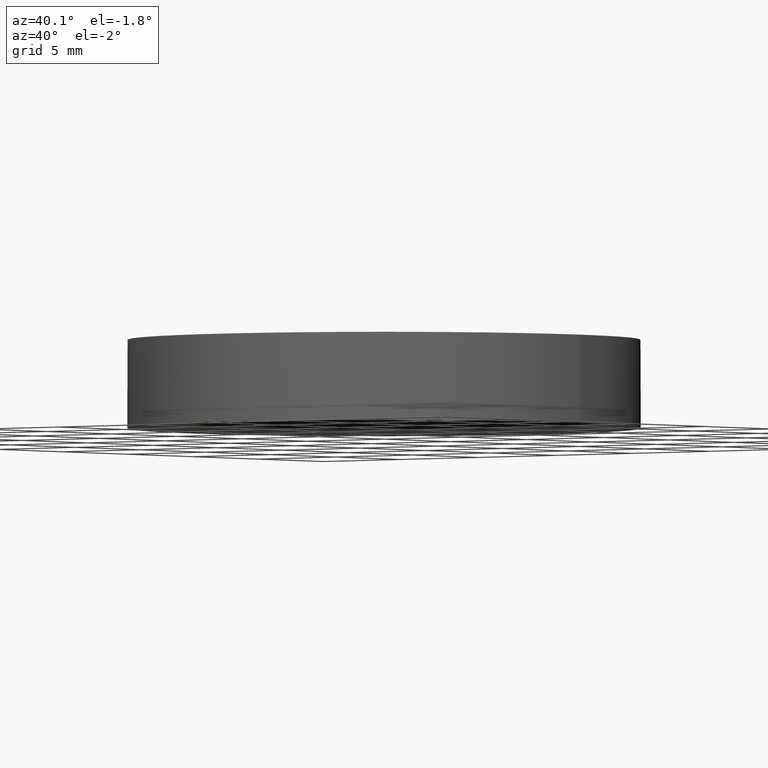
[diagram: clean part render]
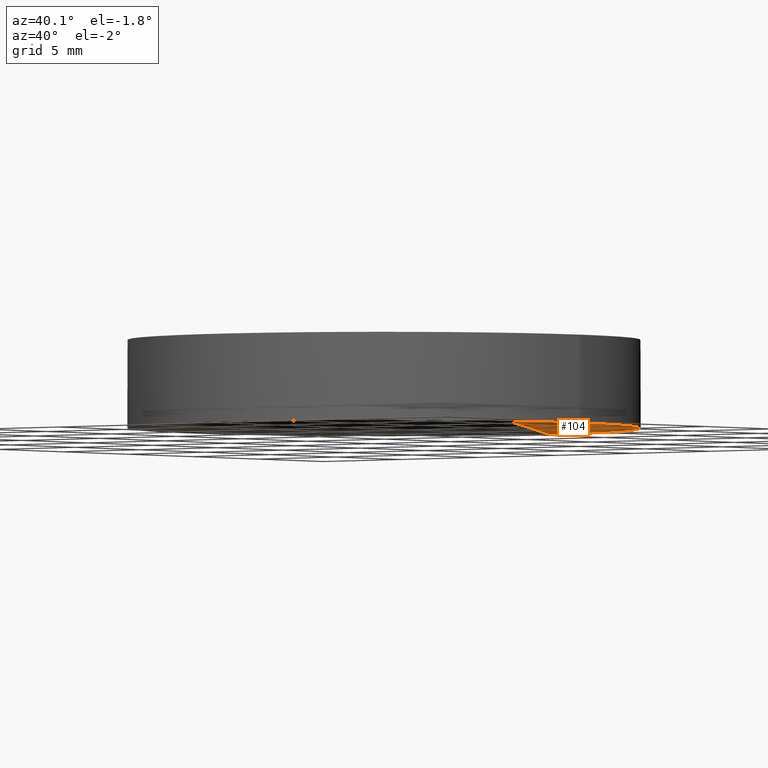
[diagram: same view with one face highlighted and labeled with its STEP entity id]
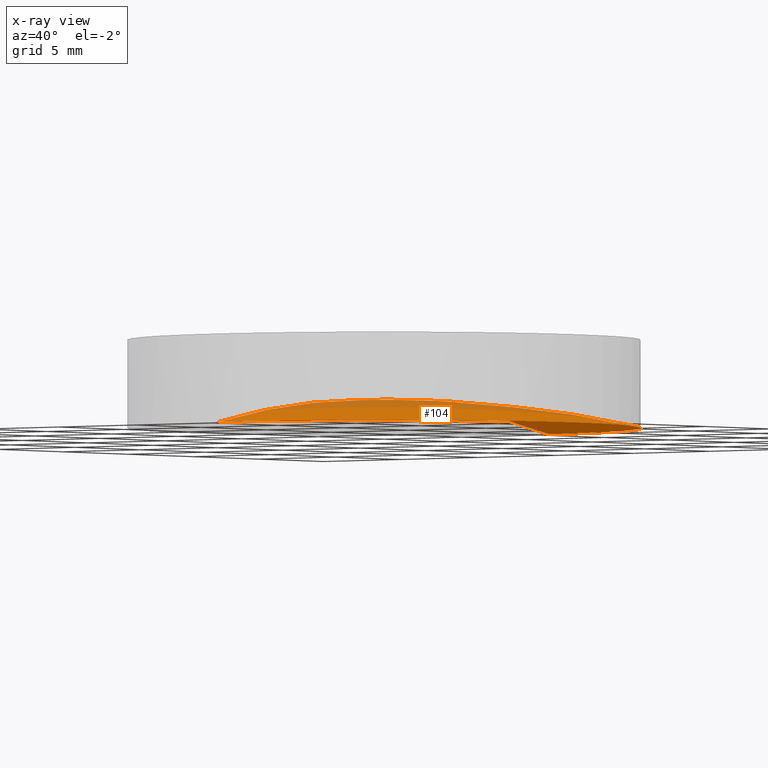
[diagram: x-ray of the same camera — body ghosted, the highlighted face saturated]
A machine part, auxiliary view. The second image highlights one B-rep face of the part: STEP entity #104.
The next image is the same camera in x-ray: the body ghosted, the highlighted face saturated — about 25% of this face is hidden behind the body in this view.
In plain terms, the highlighted face is a freeform B-spline surface patch.
Its self-contained STEP definition (entity closure, byte-faithful):
#3 =( BOUNDED_SURFACE ( )  B_SPLINE_SURFACE ( 3, 3, ( 
 ( #120, #194, #209, #82 ),
 ( #173, #22, #156, #138 ),
 ( #224, #40, #23, #6 ),
 ( #85, #208, #190, #103 ) ),
 .UNSPECIFIED., .F., .F., .F. ) 
 B_SPLINE_SURFACE_WITH_KNOTS ( ( 4, 4 ),
 ( 4, 4 ),
 ( 0.0000000000000000000, 1.000000000000000000 ),
 ( 0.0000000000000000000, 1.000000000000000000 ),
 .UNSPECIFIED. ) 
 GEOMETRIC_REPRESENTATION_ITEM ( )  RATIONAL_B_SPLINE_SURFACE ( (
 ( 1.000000000000000000, 0.9961030506548106400, 0.9961030506548106400, 1.000000000000000000),
 ( 0.9842725484696544000, 0.9804368882064077300, 0.9804368882064077300, 0.9842725484696544000),
 ( 0.9842725484696544000, 0.9804368882064077300, 0.9804368882064077300, 0.9842725484696544000),
 ( 1.000000000000000000, 0.9961030506548106400, 0.9961030506548106400, 1.000000000000000000) ) ) 
 REPRESENTATION_ITEM ( '' )  SURFACE ( )  );
#6 = CARTESIAN_POINT ( 'NONE',  ( 12.87707535386159200, -4.351775892739208700, -0.9230143240595769500 ) ) ;
#9 = ORIENTED_EDGE ( 'NONE', *, *, #29, .F. ) ;
#20 = CIRCLE ( 'NONE', #135, 12.69999999999999900 ) ;
#22 = CARTESIAN_POINT ( 'NONE',  ( 4.334487914191679000, 4.351775892739211400, 0.4754479041532155800 ) ) ;
#23 = CARTESIAN_POINT ( 'NONE',  ( 8.643638908624963000, -4.351775892739209600, 0.007470142450247217000 ) ) ;
#25 = CARTESIAN_POINT ( 'NONE',  ( -1.421085471520200100E-014, 3.552713678800500100E-015, -59.50999999999999800 ) ) ;
#26 = DIRECTION ( 'NONE',  ( 1.000000000000000000, 0.0000000000000000000, 0.0000000000000000000 ) ) ;
#29 = EDGE_CURVE ( 'NONE', #168, #220, #202, .T. ) ;
#33 = CARTESIAN_POINT ( 'NONE',  ( 12.69999999999999900, 2.442490654175340100E-015, -1.370941700092870100 ) ) ;
#35 = AXIS2_PLACEMENT_3D ( 'NONE', #25, #161, #210 ) ;
#40 = CARTESIAN_POINT ( 'NONE',  ( 4.334487914191678100, -4.351775892739209600, 0.4754479041532090300 ) ) ;
#49 = CARTESIAN_POINT ( 'NONE',  ( 4.996003610813200500E-016, 2.442490654175340100E-015, -1.370941700092870100 ) ) ;
#60 = CIRCLE ( 'NONE', #63, 12.69999999999999900 ) ;
#62 = ORIENTED_EDGE ( 'NONE', *, *, #109, .F. ) ;
#63 = AXIS2_PLACEMENT_3D ( 'NONE', #49, #87, #162 ) ;
#82 = CARTESIAN_POINT ( 'NONE',  ( 12.47363340973635100, 12.85000064494568200, -2.758559022837093100 ) ) ;
#84 = DIRECTION ( 'NONE',  ( 0.0000000000000000000, 0.0000000000000000000, 1.000000000000000000 ) ) ;
#85 = CARTESIAN_POINT ( 'NONE',  ( -1.421085471520199700E-014, -12.85000064494567900, -1.403910960856298500 ) ) ;
#87 = DIRECTION ( 'NONE',  ( 0.0000000000000000000, 0.0000000000000000000, 1.000000000000000000 ) ) ;
#103 = CARTESIAN_POINT ( 'NONE',  ( 12.47363340973634900, -12.85000064494567900, -2.758559022837099800 ) ) ;
#104 = ADVANCED_FACE ( 'NONE', ( #195 ), #3, .F. ) ;
#109 = EDGE_CURVE ( 'NONE', #220, #171, #20, .T. ) ;
#111 = CARTESIAN_POINT ( 'NONE',  ( -1.421085471520199700E-014, 12.70000000000000600, -1.370941700092875000 ) ) ;
#114 = EDGE_LOOP ( 'NONE', ( #9, #217, #62 ) ) ;
#120 = CARTESIAN_POINT ( 'NONE',  ( -1.421085471520199700E-014, 12.85000064494568200, -1.403910960856291600 ) ) ;
#132 = EDGE_CURVE ( 'NONE', #171, #168, #60, .T. ) ;
#135 = AXIS2_PLACEMENT_3D ( 'NONE', #136, #84, #26 ) ;
#136 = CARTESIAN_POINT ( 'NONE',  ( 4.996003610813200500E-016, 2.442490654175340100E-015, -1.370941700092870100 ) ) ;
#138 = CARTESIAN_POINT ( 'NONE',  ( 12.87707535386159400, 4.351775892739210500, -0.9230143240595705100 ) ) ;
#156 = CARTESIAN_POINT ( 'NONE',  ( 8.643638908624963000, 4.351775892739211400, 0.007470142450253722300 ) ) ;
#161 = DIRECTION ( 'NONE',  ( 1.000000000000000000, 0.0000000000000000000, 0.0000000000000000000 ) ) ;
#162 = DIRECTION ( 'NONE',  ( 1.000000000000000000, 0.0000000000000000000, 0.0000000000000000000 ) ) ;
#168 = VERTEX_POINT ( 'NONE', #111 ) ;
#171 = VERTEX_POINT ( 'NONE', #33 ) ;
#173 = CARTESIAN_POINT ( 'NONE',  ( -1.421085471520199900E-014, 4.351775892739210500, 0.4754479041532154700 ) ) ;
#175 = CARTESIAN_POINT ( 'NONE',  ( -1.421085471520199700E-014, -12.69999999999999900, -1.370941700092875000 ) ) ;
#190 = CARTESIAN_POINT ( 'NONE',  ( 8.372831571571790500, -12.85000064494567900, -1.857226863961670900 ) ) ;
#194 = CARTESIAN_POINT ( 'NONE',  ( 4.198687339695200500, 12.85000064494568200, -1.403910960856291600 ) ) ;
#195 = FACE_OUTER_BOUND ( 'NONE', #114, .T. ) ;
#202 = CIRCLE ( 'NONE', #35, 59.50999999999999800 ) ;
#208 = CARTESIAN_POINT ( 'NONE',  ( 4.198687339695200500, -12.85000064494567900, -1.403910960856298500 ) ) ;
#209 = CARTESIAN_POINT ( 'NONE',  ( 8.372831571571790500, 12.85000064494568200, -1.857226863961664300 ) ) ;
#210 = DIRECTION ( 'NONE',  ( 0.0000000000000000000, 1.000000000000000000, -2.332009377888499000E-016 ) ) ;
#217 = ORIENTED_EDGE ( 'NONE', *, *, #132, .F. ) ;
#220 = VERTEX_POINT ( 'NONE', #175 ) ;
#224 = CARTESIAN_POINT ( 'NONE',  ( -1.421085471520199900E-014, -4.351775892739208700, 0.4754479041532089800 ) ) ;